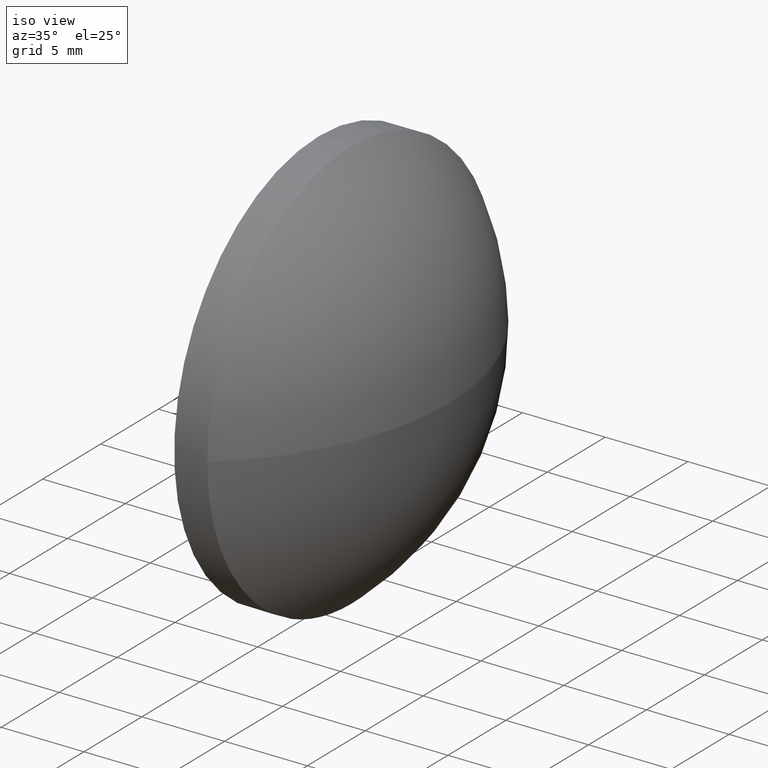
[diagram: clean part render]
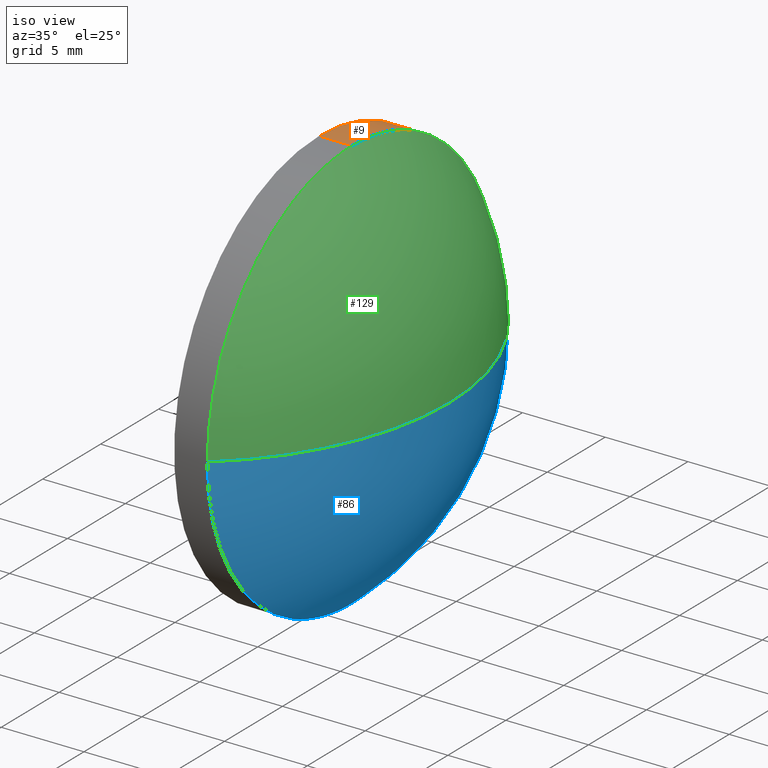
[diagram: same view with three faces highlighted in distinct colors, each labeled with its STEP entity id]
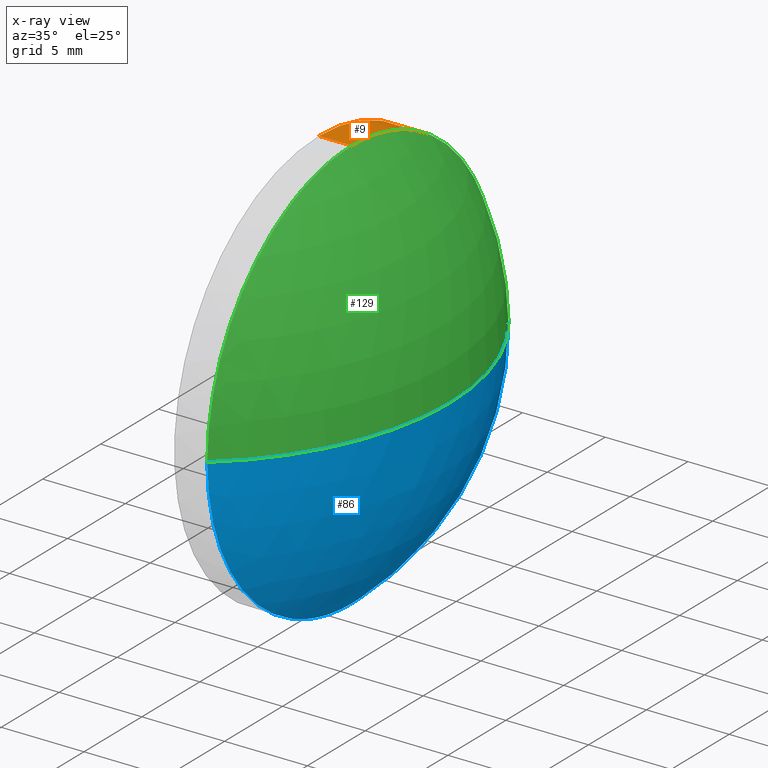
[diagram: x-ray of the same camera — body ghosted, the three highlighted faces saturated]
A machine part, iso view with three faces highlighted in distinct colors.
The next image is the same camera in x-ray (body ghosted, the three faces saturated) — at least one of them is partly hidden behind the body in this view.
Their STEP definitions:

[orange] entity #9 — the highlighted cylindrical surface (partial cylindrical patch) has radius 12.5 mm, axis along (-1, -0, -0).
#2 = AXIS2_PLACEMENT_3D ( 'NONE', #60, #116, #23 ) ;
#4 = DIRECTION ( 'NONE',  ( -1.000000000000000000, -0.0000000000000000000, -0.0000000000000000000 ) ) ;
#5 = ORIENTED_EDGE ( 'NONE', *, *, #159, .T. ) ;
#9 = ADVANCED_FACE ( 'NONE', ( #138 ), #30, .T. ) ;
#22 = EDGE_LOOP ( 'NONE', ( #139, #5, #70, #179, #130 ) ) ;
#23 = DIRECTION ( 'NONE',  ( 0.0000000000000000000, 0.0000000000000000000, 1.000000000000000000 ) ) ;
#25 = VERTEX_POINT ( 'NONE', #82 ) ;
#27 = CARTESIAN_POINT ( 'NONE',  ( 402.0677711457808500, 15.90499227710017900, 12.49999999999999600 ) ) ;
#29 = DIRECTION ( 'NONE',  ( -1.000000000000000000, -0.0000000000000000000, -0.0000000000000000000 ) ) ;
#30 = CYLINDRICAL_SURFACE ( 'NONE', #2, 12.49999999999999600 ) ;
#31 = CARTESIAN_POINT ( 'NONE',  ( 402.0677711457808500, 15.90499227710017900, -12.49999999999999600 ) ) ;
#35 = CIRCLE ( 'NONE', #78, 12.49999999999999600 ) ;
#40 = CARTESIAN_POINT ( 'NONE',  ( 406.5727201653537600, 15.90499227710017900, -12.49999999999999600 ) ) ;
#41 = LINE ( 'NONE', #31, #72 ) ;
#45 = CARTESIAN_POINT ( 'NONE',  ( 406.5727201653537600, 28.40499227710017400, 0.0000000000000000000 ) ) ;
#46 = VERTEX_POINT ( 'NONE', #40 ) ;
#56 = EDGE_CURVE ( 'NONE', #177, #46, #169, .T. ) ;
#60 = CARTESIAN_POINT ( 'NONE',  ( 402.0677711457808500, 15.90499227710017900, 0.0000000000000000000 ) ) ;
#61 = EDGE_CURVE ( 'NONE', #25, #177, #175, .T. ) ;
#70 = ORIENTED_EDGE ( 'NONE', *, *, #172, .F. ) ;
#72 = VECTOR ( 'NONE', #29, 1000.000000000000000 ) ;
#78 = AXIS2_PLACEMENT_3D ( 'NONE', #132, #158, #147 ) ;
#82 = CARTESIAN_POINT ( 'NONE',  ( 406.5727201653537600, 15.90499227710017900, 12.49999999999999600 ) ) ;
#85 = EDGE_CURVE ( 'NONE', #25, #170, #186, .T. ) ;
#88 = DIRECTION ( 'NONE',  ( -1.000000000000000000, -0.0000000000000000000, -0.0000000000000000000 ) ) ;
#99 = DIRECTION ( 'NONE',  ( 0.0000000000000000000, 0.0000000000000000000, 1.000000000000000000 ) ) ;
#103 = VECTOR ( 'NONE', #4, 1000.000000000000000 ) ;
#106 = DIRECTION ( 'NONE',  ( 0.0000000000000000000, 0.0000000000000000000, 1.000000000000000000 ) ) ;
#116 = DIRECTION ( 'NONE',  ( -1.000000000000000000, -0.0000000000000000000, -0.0000000000000000000 ) ) ;
#127 = VERTEX_POINT ( 'NONE', #156 ) ;
#130 = ORIENTED_EDGE ( 'NONE', *, *, #61, .T. ) ;
#131 = DIRECTION ( 'NONE',  ( -1.000000000000000000, -0.0000000000000000000, -0.0000000000000000000 ) ) ;
#132 = CARTESIAN_POINT ( 'NONE',  ( 404.5727201653537600, 15.90499227710017900, 0.0000000000000000000 ) ) ;
#138 = FACE_OUTER_BOUND ( 'NONE', #22, .T. ) ;
#139 = ORIENTED_EDGE ( 'NONE', *, *, #56, .T. ) ;
#142 = AXIS2_PLACEMENT_3D ( 'NONE', #166, #88, #99 ) ;
#147 = DIRECTION ( 'NONE',  ( 0.0000000000000000000, 0.0000000000000000000, 1.000000000000000000 ) ) ;
#151 = CARTESIAN_POINT ( 'NONE',  ( 406.5727201653537600, 15.90499227710017900, 0.0000000000000000000 ) ) ;
#156 = CARTESIAN_POINT ( 'NONE',  ( 404.5727201653537600, 15.90499227710017900, -12.49999999999999600 ) ) ;
#158 = DIRECTION ( 'NONE',  ( -1.000000000000000000, -0.0000000000000000000, -0.0000000000000000000 ) ) ;
#159 = EDGE_CURVE ( 'NONE', #46, #127, #41, .T. ) ;
#163 = AXIS2_PLACEMENT_3D ( 'NONE', #151, #131, #106 ) ;
#166 = CARTESIAN_POINT ( 'NONE',  ( 406.5727201653537600, 15.90499227710017900, 0.0000000000000000000 ) ) ;
#168 = CARTESIAN_POINT ( 'NONE',  ( 404.5727201653537600, 15.90499227710017900, 12.49999999999999600 ) ) ;
#169 = CIRCLE ( 'NONE', #142, 12.49999999999999600 ) ;
#170 = VERTEX_POINT ( 'NONE', #168 ) ;
#172 = EDGE_CURVE ( 'NONE', #170, #127, #35, .T. ) ;
#175 = CIRCLE ( 'NONE', #163, 12.49999999999999600 ) ;
#177 = VERTEX_POINT ( 'NONE', #45 ) ;
#179 = ORIENTED_EDGE ( 'NONE', *, *, #85, .F. ) ;
#186 = LINE ( 'NONE', #27, #103 ) ;

[blue] entity #86 — the highlighted spherical surface has radius 16.2619 mm.
#8 = DIRECTION ( 'NONE',  ( 1.000000000000000000, 0.0000000000000000000, 0.0000000000000000000 ) ) ;
#11 = ORIENTED_EDGE ( 'NONE', *, *, #117, .F. ) ;
#17 = AXIS2_PLACEMENT_3D ( 'NONE', #75, #182, #90 ) ;
#28 = CARTESIAN_POINT ( 'NONE',  ( 396.1708089025551100, 15.90499227710017900, 0.0000000000000000000 ) ) ;
#33 = AXIS2_PLACEMENT_3D ( 'NONE', #119, #122, #157 ) ;
#40 = CARTESIAN_POINT ( 'NONE',  ( 406.5727201653537600, 15.90499227710017900, -12.49999999999999600 ) ) ;
#44 = EDGE_CURVE ( 'NONE', #91, #177, #144, .T. ) ;
#45 = CARTESIAN_POINT ( 'NONE',  ( 406.5727201653537600, 28.40499227710017400, 0.0000000000000000000 ) ) ;
#46 = VERTEX_POINT ( 'NONE', #40 ) ;
#48 = EDGE_CURVE ( 'NONE', #91, #49, #133, .T. ) ;
#49 = VERTEX_POINT ( 'NONE', #155 ) ;
#54 = ORIENTED_EDGE ( 'NONE', *, *, #44, .F. ) ;
#56 = EDGE_CURVE ( 'NONE', #177, #46, #169, .T. ) ;
#58 = ORIENTED_EDGE ( 'NONE', *, *, #48, .T. ) ;
#62 = DIRECTION ( 'NONE',  ( -0.0000000000000000000, 0.0000000000000000000, 1.000000000000000000 ) ) ;
#65 = EDGE_LOOP ( 'NONE', ( #54, #58, #11, #148 ) ) ;
#75 = CARTESIAN_POINT ( 'NONE',  ( 406.5727201653537600, 15.90499227710017900, 0.0000000000000000000 ) ) ;
#86 = ADVANCED_FACE ( 'NONE', ( #94 ), #135, .T. ) ;
#88 = DIRECTION ( 'NONE',  ( -1.000000000000000000, -0.0000000000000000000, -0.0000000000000000000 ) ) ;
#90 = DIRECTION ( 'NONE',  ( 0.0000000000000000000, 0.0000000000000000000, 1.000000000000000000 ) ) ;
#91 = VERTEX_POINT ( 'NONE', #112 ) ;
#94 = FACE_OUTER_BOUND ( 'NONE', #65, .T. ) ;
#99 = DIRECTION ( 'NONE',  ( 0.0000000000000000000, 0.0000000000000000000, 1.000000000000000000 ) ) ;
#100 = CIRCLE ( 'NONE', #17, 12.49999999999999600 ) ;
#108 = AXIS2_PLACEMENT_3D ( 'NONE', #28, #115, #141 ) ;
#112 = CARTESIAN_POINT ( 'NONE',  ( 412.4327201653537700, 15.90499227710017900, 0.0000000000000000000 ) ) ;
#115 = DIRECTION ( 'NONE',  ( 0.0000000000000000000, 1.224646799147353200E-016, -1.000000000000000000 ) ) ;
#117 = EDGE_CURVE ( 'NONE', #46, #49, #100, .T. ) ;
#118 = CARTESIAN_POINT ( 'NONE',  ( 396.1708089025551100, 15.90499227710017900, 0.0000000000000000000 ) ) ;
#119 = CARTESIAN_POINT ( 'NONE',  ( 396.1708089025551100, 15.90499227710017900, 0.0000000000000000000 ) ) ;
#122 = DIRECTION ( 'NONE',  ( -0.0000000000000000000, 0.0000000000000000000, -1.000000000000000000 ) ) ;
#133 = CIRCLE ( 'NONE', #108, 16.26191126279863800 ) ;
#134 = AXIS2_PLACEMENT_3D ( 'NONE', #118, #62, #8 ) ;
#135 = SPHERICAL_SURFACE ( 'NONE', #33, 16.26191126279864100 ) ;
#141 = DIRECTION ( 'NONE',  ( 0.0000000000000000000, 1.000000000000000000, 1.224646799147353500E-016 ) ) ;
#142 = AXIS2_PLACEMENT_3D ( 'NONE', #166, #88, #99 ) ;
#144 = CIRCLE ( 'NONE', #134, 16.26191126279863400 ) ;
#148 = ORIENTED_EDGE ( 'NONE', *, *, #56, .F. ) ;
#155 = CARTESIAN_POINT ( 'NONE',  ( 406.5727201653537600, 3.404992277100186400, -1.530808498934190700E-015 ) ) ;
#157 = DIRECTION ( 'NONE',  ( 0.0000000000000000000, 1.000000000000000000, 0.0000000000000000000 ) ) ;
#166 = CARTESIAN_POINT ( 'NONE',  ( 406.5727201653537600, 15.90499227710017900, 0.0000000000000000000 ) ) ;
#169 = CIRCLE ( 'NONE', #142, 12.49999999999999600 ) ;
#177 = VERTEX_POINT ( 'NONE', #45 ) ;
#182 = DIRECTION ( 'NONE',  ( -1.000000000000000000, -0.0000000000000000000, -0.0000000000000000000 ) ) ;

[green] entity #129 — the highlighted spherical surface has radius 16.2619 mm.
#8 = DIRECTION ( 'NONE',  ( 1.000000000000000000, 0.0000000000000000000, 0.0000000000000000000 ) ) ;
#13 = DIRECTION ( 'NONE',  ( 0.0000000000000000000, 1.000000000000000000, 0.0000000000000000000 ) ) ;
#25 = VERTEX_POINT ( 'NONE', #82 ) ;
#28 = CARTESIAN_POINT ( 'NONE',  ( 396.1708089025551100, 15.90499227710017900, 0.0000000000000000000 ) ) ;
#38 = AXIS2_PLACEMENT_3D ( 'NONE', #102, #184, #13 ) ;
#44 = EDGE_CURVE ( 'NONE', #91, #177, #144, .T. ) ;
#45 = CARTESIAN_POINT ( 'NONE',  ( 406.5727201653537600, 28.40499227710017400, 0.0000000000000000000 ) ) ;
#48 = EDGE_CURVE ( 'NONE', #91, #49, #133, .T. ) ;
#49 = VERTEX_POINT ( 'NONE', #155 ) ;
#51 = DIRECTION ( 'NONE',  ( 0.0000000000000000000, 0.0000000000000000000, 1.000000000000000000 ) ) ;
#57 = SPHERICAL_SURFACE ( 'NONE', #38, 16.26191126279864100 ) ;
#61 = EDGE_CURVE ( 'NONE', #25, #177, #175, .T. ) ;
#62 = DIRECTION ( 'NONE',  ( -0.0000000000000000000, 0.0000000000000000000, 1.000000000000000000 ) ) ;
#82 = CARTESIAN_POINT ( 'NONE',  ( 406.5727201653537600, 15.90499227710017900, 12.49999999999999600 ) ) ;
#83 = EDGE_LOOP ( 'NONE', ( #128, #146, #104, #174 ) ) ;
#91 = VERTEX_POINT ( 'NONE', #112 ) ;
#102 = CARTESIAN_POINT ( 'NONE',  ( 396.1708089025551100, 15.90499227710017900, 0.0000000000000000000 ) ) ;
#104 = ORIENTED_EDGE ( 'NONE', *, *, #61, .F. ) ;
#106 = DIRECTION ( 'NONE',  ( 0.0000000000000000000, 0.0000000000000000000, 1.000000000000000000 ) ) ;
#108 = AXIS2_PLACEMENT_3D ( 'NONE', #28, #115, #141 ) ;
#112 = CARTESIAN_POINT ( 'NONE',  ( 412.4327201653537700, 15.90499227710017900, 0.0000000000000000000 ) ) ;
#115 = DIRECTION ( 'NONE',  ( 0.0000000000000000000, 1.224646799147353200E-016, -1.000000000000000000 ) ) ;
#118 = CARTESIAN_POINT ( 'NONE',  ( 396.1708089025551100, 15.90499227710017900, 0.0000000000000000000 ) ) ;
#125 = CARTESIAN_POINT ( 'NONE',  ( 406.5727201653537600, 15.90499227710017900, 0.0000000000000000000 ) ) ;
#128 = ORIENTED_EDGE ( 'NONE', *, *, #48, .F. ) ;
#129 = ADVANCED_FACE ( 'NONE', ( #152 ), #57, .T. ) ;
#131 = DIRECTION ( 'NONE',  ( -1.000000000000000000, -0.0000000000000000000, -0.0000000000000000000 ) ) ;
#133 = CIRCLE ( 'NONE', #108, 16.26191126279863800 ) ;
#134 = AXIS2_PLACEMENT_3D ( 'NONE', #118, #62, #8 ) ;
#141 = DIRECTION ( 'NONE',  ( 0.0000000000000000000, 1.000000000000000000, 1.224646799147353500E-016 ) ) ;
#144 = CIRCLE ( 'NONE', #134, 16.26191126279863400 ) ;
#146 = ORIENTED_EDGE ( 'NONE', *, *, #44, .T. ) ;
#149 = DIRECTION ( 'NONE',  ( -1.000000000000000000, -0.0000000000000000000, -0.0000000000000000000 ) ) ;
#150 = AXIS2_PLACEMENT_3D ( 'NONE', #125, #149, #51 ) ;
#151 = CARTESIAN_POINT ( 'NONE',  ( 406.5727201653537600, 15.90499227710017900, 0.0000000000000000000 ) ) ;
#152 = FACE_OUTER_BOUND ( 'NONE', #83, .T. ) ;
#155 = CARTESIAN_POINT ( 'NONE',  ( 406.5727201653537600, 3.404992277100186400, -1.530808498934190700E-015 ) ) ;
#163 = AXIS2_PLACEMENT_3D ( 'NONE', #151, #131, #106 ) ;
#164 = CIRCLE ( 'NONE', #150, 12.49999999999999600 ) ;
#174 = ORIENTED_EDGE ( 'NONE', *, *, #185, .F. ) ;
#175 = CIRCLE ( 'NONE', #163, 12.49999999999999600 ) ;
#177 = VERTEX_POINT ( 'NONE', #45 ) ;
#184 = DIRECTION ( 'NONE',  ( -0.0000000000000000000, 0.0000000000000000000, -1.000000000000000000 ) ) ;
#185 = EDGE_CURVE ( 'NONE', #49, #25, #164, .T. ) ;